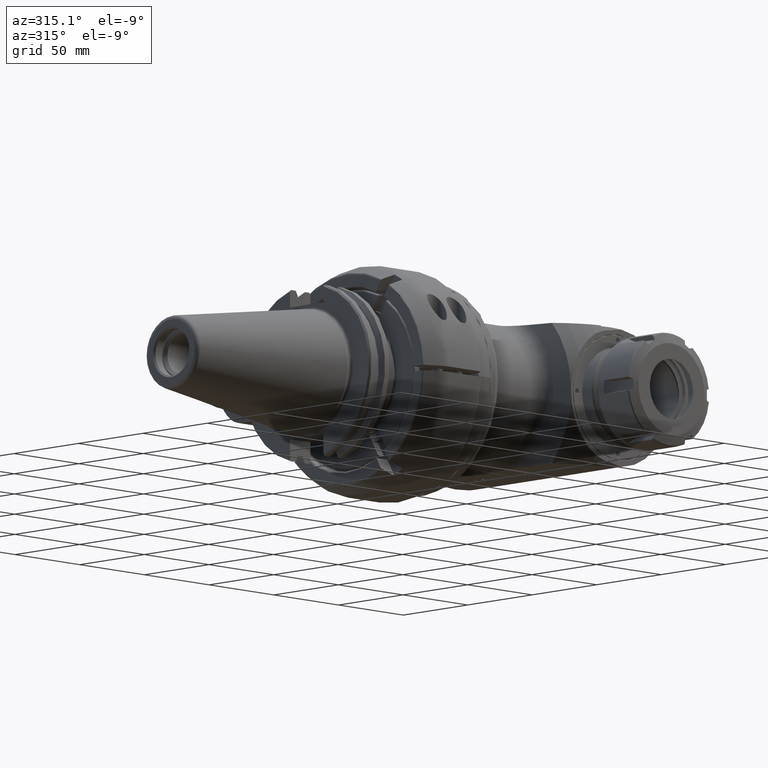
[diagram: clean part render]
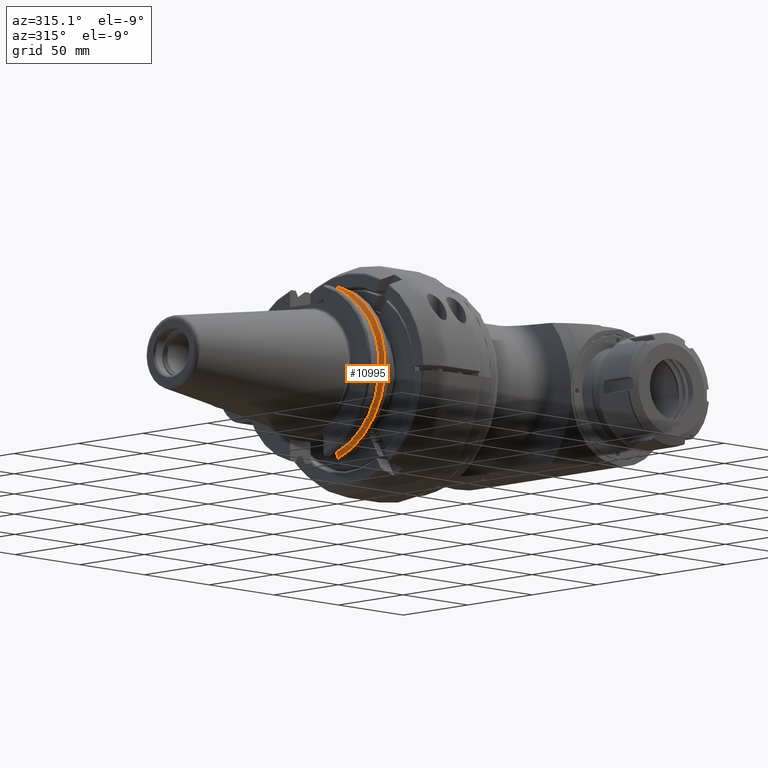
[diagram: same view with one face highlighted and labeled with its STEP entity id]
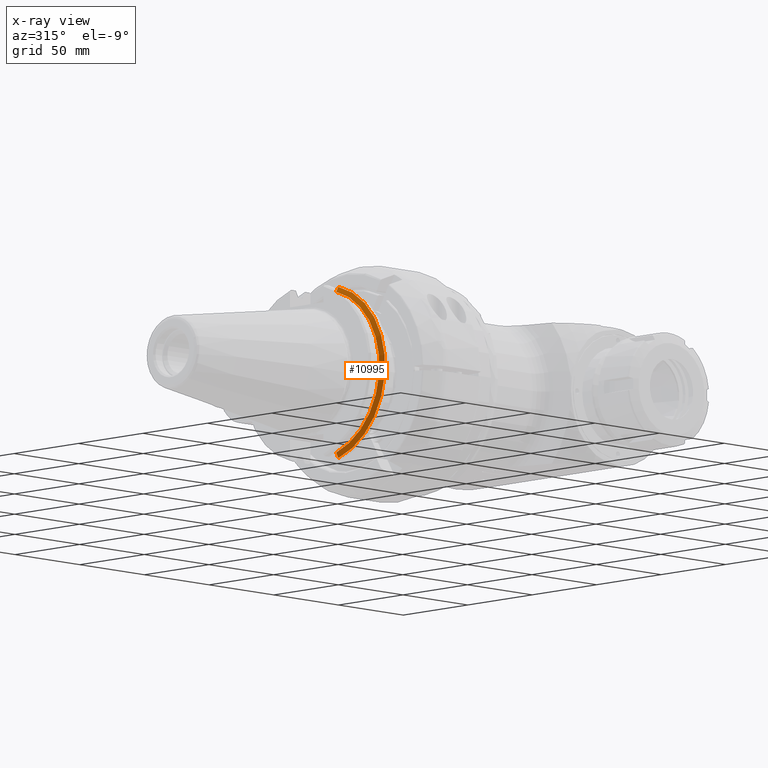
[diagram: x-ray of the same camera — body ghosted, the highlighted face saturated]
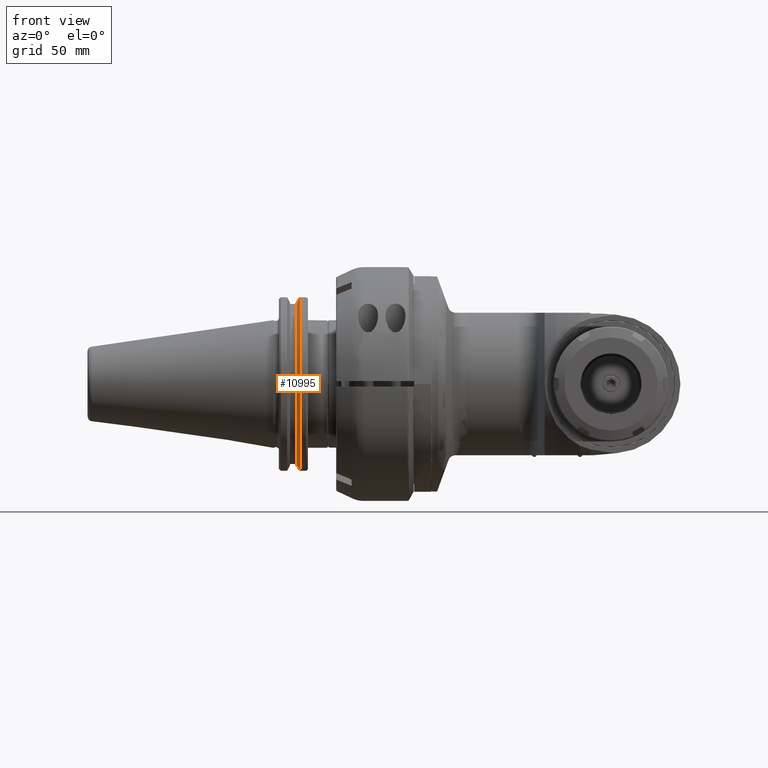
[diagram: same view with one face highlighted and labeled with its STEP entity id]
A machine part, auxiliary view. The second image highlights one B-rep face of the part: STEP entity #10995.
The next image is the same camera in x-ray: the body ghosted, the highlighted face saturated — about 0% of this face is hidden behind the body in this view.
A second angle (front view) of the same face is appended — the face is thin or edge-on in the first view.
In plain terms, the highlighted conical surface has half-angle 60 deg.
Its self-contained STEP definition (entity closure, byte-faithful):
#70=(
BOUNDED_CURVE()
B_SPLINE_CURVE(2,(#16991,#16992,#16993),.UNSPECIFIED.,.F.,.F.)
B_SPLINE_CURVE_WITH_KNOTS((3,3),(2.630951469893,2.91372369185144),
 .UNSPECIFIED.)
CURVE()
GEOMETRIC_REPRESENTATION_ITEM()
RATIONAL_B_SPLINE_CURVE((1.03388806432511,1.03135373952368,1.02788317449083))
REPRESENTATION_ITEM('')
);
#72=(
BOUNDED_CURVE()
B_SPLINE_CURVE(2,(#17021,#17022,#17023),.UNSPECIFIED.,.F.,.F.)
B_SPLINE_CURVE_WITH_KNOTS((3,3),(0.817297255891627,1.10006947783373),
 .UNSPECIFIED.)
CURVE()
GEOMETRIC_REPRESENTATION_ITEM()
RATIONAL_B_SPLINE_CURVE((1.02788317449123,1.03135373952383,1.03388806432511))
REPRESENTATION_ITEM('')
);
#351=CONICAL_SURFACE('',#11785,47.81935371176,1.0471975511966);
#2341=FACE_OUTER_BOUND('',#3035,.T.);
#3035=EDGE_LOOP('',(#7512,#7513,#7514,#7515));
#3824=CIRCLE('',#11784,49.2125);
#3825=CIRCLE('',#11786,46.42620742351);
#4488=VERTEX_POINT('',#16988);
#4489=VERTEX_POINT('',#16990);
#4497=VERTEX_POINT('',#17018);
#4498=VERTEX_POINT('',#17020);
#5627=EDGE_CURVE('',#4489,#4488,#70,.T.);
#5640=EDGE_CURVE('',#4498,#4497,#72,.T.);
#5676=EDGE_CURVE('',#4488,#4498,#3824,.T.);
#5677=EDGE_CURVE('',#4489,#4497,#3825,.T.);
#7512=ORIENTED_EDGE('',*,*,#5676,.T.);
#7513=ORIENTED_EDGE('',*,*,#5640,.T.);
#7514=ORIENTED_EDGE('',*,*,#5677,.F.);
#7515=ORIENTED_EDGE('',*,*,#5627,.T.);
#10995=ADVANCED_FACE('',(#2341),#351,.T.);
#11784=AXIS2_PLACEMENT_3D('',#17101,#13392,#13393);
#11785=AXIS2_PLACEMENT_3D('',#17102,#13394,#13395);
#11786=AXIS2_PLACEMENT_3D('',#17103,#13396,#13397);
#13392=DIRECTION('center_axis',(-1.,0.,0.));
#13393=DIRECTION('ref_axis',(0.,-1.,0.));
#13394=DIRECTION('center_axis',(1.,0.,0.));
#13395=DIRECTION('ref_axis',(0.,-1.,0.));
#13396=DIRECTION('center_axis',(-1.,0.,0.));
#13397=DIRECTION('ref_axis',(0.,-0.279023437814492,-0.960284291837673));
#16988=CARTESIAN_POINT('',(-62.29783300016,-12.954,-47.47698432135));
#16990=CARTESIAN_POINT('',(-63.90649976923,-12.954,-44.5823577184));
#16991=CARTESIAN_POINT('Ctrl Pts',(-63.9064997692291,-12.954,-44.5823577183978));
#16992=CARTESIAN_POINT('Ctrl Pts',(-63.1274570804253,-12.954,-45.9875056831647));
#16993=CARTESIAN_POINT('Ctrl Pts',(-62.2978330000718,-12.954,-47.4769843215008));
#17018=CARTESIAN_POINT('',(-63.90649976923,-12.954,44.5823577184));
#17020=CARTESIAN_POINT('',(-62.29783300016,-12.954,47.47698432135));
#17021=CARTESIAN_POINT('Ctrl Pts',(-62.297833000168,-12.954,47.476984321328));
#17022=CARTESIAN_POINT('Ctrl Pts',(-63.1274570804704,-12.954,45.9875056830832));
#17023=CARTESIAN_POINT('Ctrl Pts',(-63.9064997692291,-12.954,44.5823577183978));
#17101=CARTESIAN_POINT('Origin',(-62.29783300016,0.,0.));
#17102=CARTESIAN_POINT('Origin',(-63.10216638469,0.,0.));
#17103=CARTESIAN_POINT('Origin',(-63.90649976923,0.,0.));